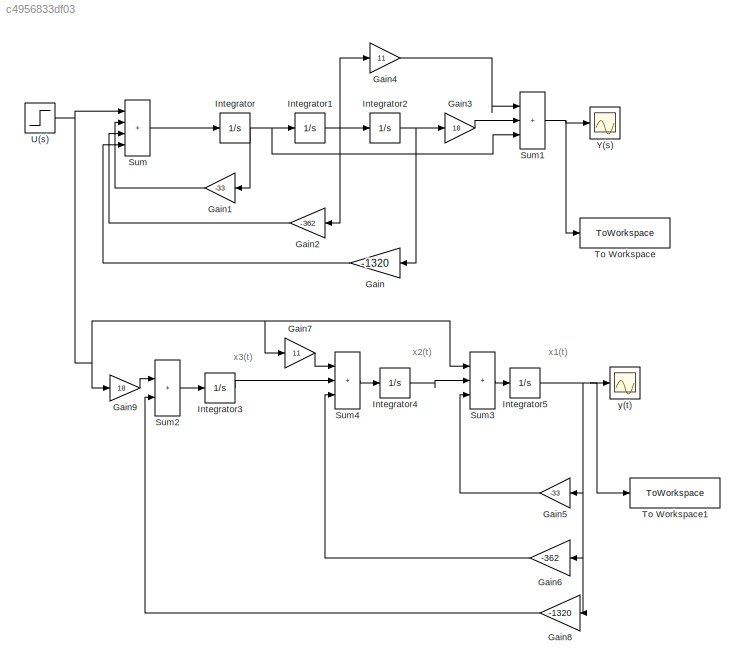
MODEL slx_c4956833df03
KIND model
CONFIG AbsTol = auto
CONFIG EnableMultiTasking = off
CONFIG FixedStep = auto
CONFIG MaxStep = auto
CONFIG MinStep = auto
CONFIG RelTol = 1e-3
CONFIG SampleTimeConstraint = Unconstrained
CONFIG SolverName = VariableStepAuto
CONFIG StartTime = 0.0
CONFIG StopTime = 50
BLOCK [Gain] Gain
  Gain = -1320
  NameLocation = top
BLOCK [Gain] Gain1
  Gain = -33
  NameLocation = top
BLOCK [Gain] Gain2
  Gain = -362
  NameLocation = top
BLOCK [Gain] Gain3
  Gain = 18
BLOCK [Gain] Gain4
  Gain = 11
BLOCK [Gain] Gain5
  Gain = -33
  NameLocation = top
BLOCK [Gain] Gain6
  Gain = -362
  NameLocation = top
BLOCK [Gain] Gain7
  Gain = 11
BLOCK [Gain] Gain8
  Gain = -1320
  NameLocation = top
BLOCK [Gain] Gain9
  Gain = 18
BLOCK [Integrator] Integrator
  InitialCondition = 1
  Ports = [1, 1]
BLOCK [Integrator] Integrator1
  InitialCondition = -1
  Ports = [1, 1]
BLOCK [Integrator] Integrator2
  InitialCondition = 2
  Ports = [1, 1]
BLOCK [Integrator] Integrator3
  Ports = [1, 1]
BLOCK [Integrator] Integrator4
  Ports = [1, 1]
BLOCK [Integrator] Integrator5
  Ports = [1, 1]
BLOCK [Sum] Sum
  IconShape = rectangular
  Inputs = |++++
  Ports = [4, 1]
BLOCK [Sum] Sum1
  IconShape = rectangular
  Inputs = |+++
  Ports = [3, 1]
BLOCK [Sum] Sum2
  IconShape = rectangular
  Inputs = |++
  Ports = [2, 1]
BLOCK [Sum] Sum3
  IconShape = rectangular
  Inputs = |+++
  Ports = [3, 1]
BLOCK [Sum] Sum4
  IconShape = rectangular
  Inputs = |+++
  Ports = [3, 1]
BLOCK [ToWorkspace] To Workspace
  FixptAsFi = on
  MaxDataPoints = inf
  Ports = [1]
  SampleTime = -1
  SaveFormat = Structure With Time
  VariableName = y1
BLOCK [ToWorkspace] To Workspace1
  FixptAsFi = on
  MaxDataPoints = inf
  Ports = [1]
  SampleTime = -1
  SaveFormat = Structure With Time
  VariableName = y2
BLOCK [Step] U(s)
  SampleTime = 0
BLOCK [Scope] Y(s)
  Floating = off
  NumInputPorts = 1
  Ports = [1]
  ScopeSpecificationString = Simulink.scopes.TimeScopeBlockCfg('CurrentConfiguration', extmgr.ConfigurationSet(extmgr.Configuration('Core','General UI',true),extmgr.Configuration('Core','Source UI',true),extmgr.Configuration('Sources','WiredSimulink',true),extmgr.Configuration('Visuals','Time Domain',true,'SerializedDisplays',{struct('MinYLimReal','-61.87627','MaxYLimReal','35.76403','YLabelReal','','MinYLimMag','0.00000','Ma...<+1359ch>
BLOCK [Scope] y(t)
  Floating = off
  NumInputPorts = 1
  Ports = [1]
  ScopeSpecificationString = Simulink.scopes.TimeScopeBlockCfg('CurrentConfiguration', extmgr.ConfigurationSet(extmgr.Configuration('Core','General UI',true),extmgr.Configuration('Core','Source UI',true),extmgr.Configuration('Sources','WiredSimulink',true,'DataLoggingVariableName','ScopeData1'),extmgr.Configuration('Visuals','Time Domain',true,'SerializedDisplays',{struct('MinYLimReal','-0.36469','MaxYLimReal','1.15163','YLab...<+1445ch>
ANNOTATION (root): x1(t)
ANNOTATION (root): x2(t)
ANNOTATION (root): x3(t)
LINE Gain1:1 -> Sum:2
LINE Gain2:1 -> Sum:3
LINE Gain3:1 -> Sum1:2
LINE Gain4:1 -> Sum1:1
LINE Gain5:1 -> Sum3:3
LINE Gain6:1 -> Sum4:3
LINE Gain7:1 -> Sum4:1
LINE Gain8:1 -> Sum2:2
LINE Gain9:1 -> Sum2:1
LINE Gain:1 -> Sum:4
NET Integrator1:1 -> Gain2:1, Gain4:1, Integrator2:1
NET Integrator2:1 -> Gain3:1, Gain:1
LINE Integrator3:1 -> Sum4:2
LINE Integrator4:1 -> Sum3:2
NET Integrator5:1 -> Gain5:1, Gain6:1, Gain8:1, To Workspace1:1, y(t):1
NET Integrator:1 -> Gain1:1, Integrator1:1, Sum1:3
NET Sum1:1 -> To Workspace:1, Y(s):1
LINE Sum2:1 -> Integrator3:1
LINE Sum3:1 -> Integrator5:1
LINE Sum4:1 -> Integrator4:1
LINE Sum:1 -> Integrator:1
NET U(s):1 -> Gain7:1, Gain9:1, Sum3:1, Sum:1
note: NET lines group one-source signal fan-out (src -> all destinations, sorted); 1:1 wires keep LINE
